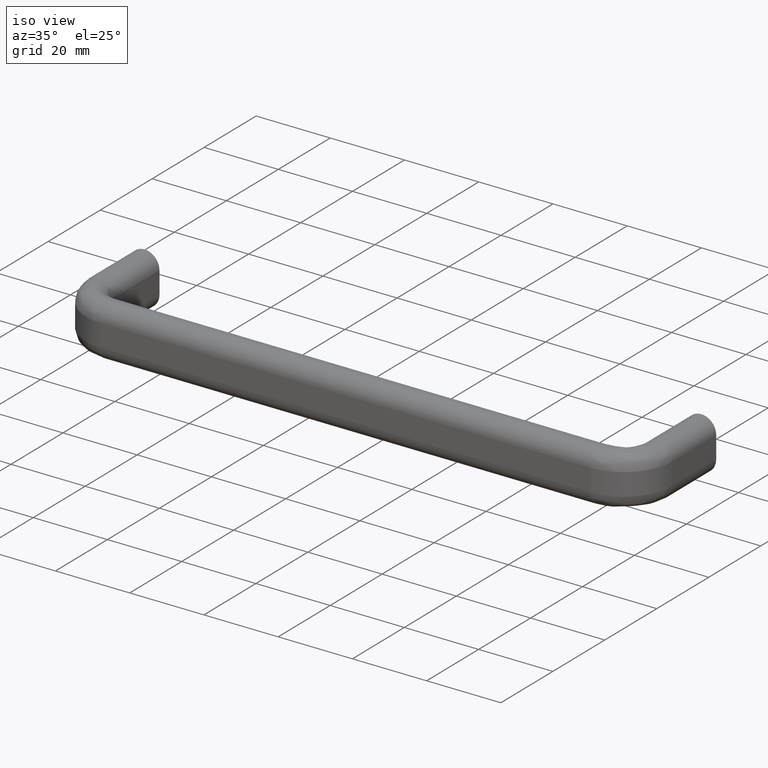
[diagram: clean part render]
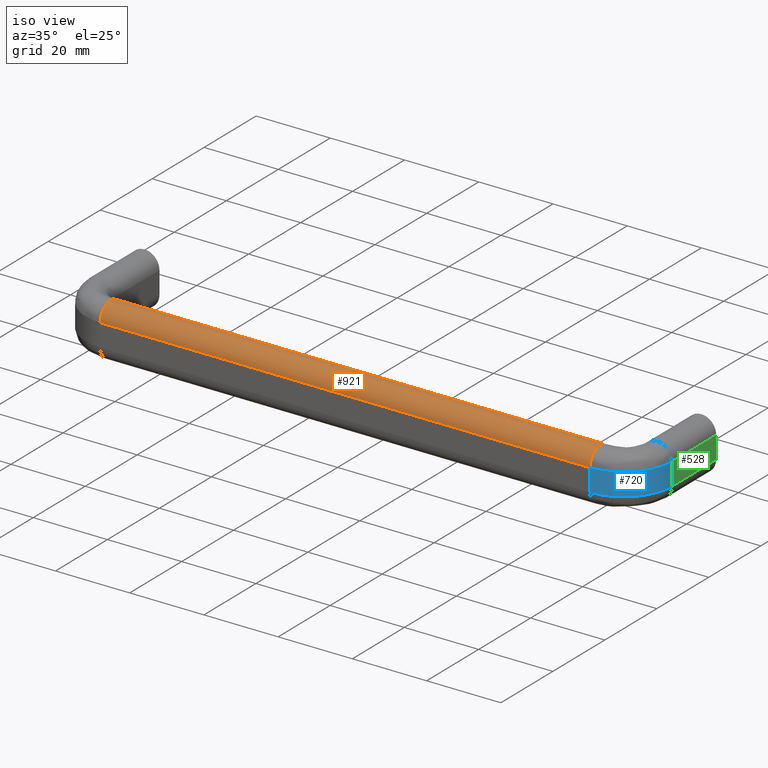
[diagram: same view with three faces highlighted in distinct colors, each labeled with its STEP entity id]
A machine part, iso view with three faces highlighted in distinct colors.
Their STEP definitions:

[orange] entity #921 — the highlighted face is a freeform B-spline surface patch.
#698=CARTESIAN_POINT('',(141.0,-30.0,3.0));
#699=VERTEX_POINT('',#698);
#746=CARTESIAN_POINT('',(141.0,-22.0,3.0));
#747=VERTEX_POINT('',#746);
#761=CARTESIAN_POINT('',(141.0,-22.0,3.0));
#762=CARTESIAN_POINT('',(141.0,-22.000000000000007,6.999999999999999));
#763=CARTESIAN_POINT('',(141.0,-26.0,7.0));
#764=CARTESIAN_POINT('',(141.0,-30.000000000000004,6.999999999999999));
#765=CARTESIAN_POINT('',(141.0,-30.0,3.0));
#773=(BOUNDED_CURVE()B_SPLINE_CURVE(2,(#761,#762,#763,#764,#765),.UNSPECIFIED.,.F.,.U.)B_SPLINE_CURVE_WITH_KNOTS((3,2,3),(0.0,0.500000000000000,1.0),.UNSPECIFIED.)CURVE()GEOMETRIC_REPRESENTATION_ITEM()RATIONAL_B_SPLINE_CURVE((1.0,0.707106781186548,1.0,0.707106781186548,1.0))REPRESENTATION_ITEM(''));
#774=EDGE_CURVE('',#747,#699,#773,.T.);
#862=CARTESIAN_POINT('',(9.0,-30.0,3.0));
#863=VERTEX_POINT('',#862);
#864=CARTESIAN_POINT('',(9.0,-30.0,3.0));
#865=CARTESIAN_POINT('',(141.0,-30.0,3.0));
#866=QUASI_UNIFORM_CURVE('',1,(#864,#865),.UNSPECIFIED.,.F.,.U.);
#867=EDGE_CURVE('',#863,#699,#866,.T.);
#877=CARTESIAN_POINT('',(5.699999999999996,-29.998629299902230,2.895292206768502));
#878=CARTESIAN_POINT('',(144.382499999999990,-29.998629299902230,2.895292206768502));
#879=CARTESIAN_POINT('',(5.699999999999998,-30.108968291371600,7.108968291371591));
#880=CARTESIAN_POINT('',(144.382500000000020,-30.108968291371600,7.108968291371591));
#881=CARTESIAN_POINT('',(5.699999999999996,-25.895292206768509,6.998629299902220));
#882=CARTESIAN_POINT('',(144.382499999999990,-25.895292206768509,6.998629299902220));
#883=CARTESIAN_POINT('',(5.699999999999998,-21.681616122165430,6.888290308432843));
#884=CARTESIAN_POINT('',(144.382500000000020,-21.681616122165430,6.888290308432843));
#885=CARTESIAN_POINT('',(5.699999999999996,-22.012330665067498,2.686163617088617));
#886=CARTESIAN_POINT('',(144.382499999999990,-22.012330665067498,2.686163617088617));
#894=(BOUNDED_SURFACE()B_SPLINE_SURFACE(1,2,((#877,#879,#881,#883,#885),(#878,#880,#882,#884,#886)),.UNSPECIFIED.,.F.,.F.,.U.)B_SPLINE_SURFACE_WITH_KNOTS((2,2),(3,2,3),(0.0,138.682500000000000),(0.0,6.874142495469371,13.748284990938741),.UNSPECIFIED.)GEOMETRIC_REPRESENTATION_ITEM()RATIONAL_B_SPLINE_SURFACE(((1.0,0.688354575693754,1.0,0.688354575693754,1.0),(1.0,0.688354575693754,1.0,0.688354575693754,1.0)))REPRESENTATION_ITEM('')SURFACE());
#895=ORIENTED_EDGE('',*,*,#867,.T.);
#896=ORIENTED_EDGE('',*,*,#774,.F.);
#897=CARTESIAN_POINT('',(9.0,-22.0,3.0));
#898=VERTEX_POINT('',#897);
#899=CARTESIAN_POINT('',(9.0,-22.0,3.0));
#900=CARTESIAN_POINT('',(141.0,-22.0,3.0));
#901=QUASI_UNIFORM_CURVE('',1,(#899,#900),.UNSPECIFIED.,.F.,.U.);
#902=EDGE_CURVE('',#898,#747,#901,.T.);
#903=ORIENTED_EDGE('',*,*,#902,.F.);
#904=CARTESIAN_POINT('',(9.0,-22.0,3.0));
#905=CARTESIAN_POINT('',(9.000000000000002,-22.000000000000007,6.999999999999999));
#906=CARTESIAN_POINT('',(9.0,-26.0,7.0));
#907=CARTESIAN_POINT('',(9.000000000000002,-30.000000000000004,6.999999999999999));
#908=CARTESIAN_POINT('',(9.0,-30.0,3.0));
#916=(BOUNDED_CURVE()B_SPLINE_CURVE(2,(#904,#905,#906,#907,#908),.UNSPECIFIED.,.F.,.U.)B_SPLINE_CURVE_WITH_KNOTS((3,2,3),(0.0,0.500000000000000,1.0),.UNSPECIFIED.)CURVE()GEOMETRIC_REPRESENTATION_ITEM()RATIONAL_B_SPLINE_CURVE((1.0,0.707106781186548,1.0,0.707106781186548,1.0))REPRESENTATION_ITEM(''));
#917=EDGE_CURVE('',#898,#863,#916,.T.);
#918=ORIENTED_EDGE('',*,*,#917,.T.);
#919=EDGE_LOOP('',(#895,#896,#903,#918));
#920=FACE_OUTER_BOUND('',#919,.T.);
#921=ADVANCED_FACE('',(#920),#894,.T.);

[blue] entity #720 — the highlighted face is a freeform B-spline surface patch.
#469=CARTESIAN_POINT('',(154.0,-17.0,-3.0));
#470=VERTEX_POINT('',#469);
#514=CARTESIAN_POINT('',(154.0,-17.0,3.0));
#515=VERTEX_POINT('',#514);
#521=CARTESIAN_POINT('',(154.0,-17.0,3.0));
#522=CARTESIAN_POINT('',(154.0,-17.0,-3.0));
#523=QUASI_UNIFORM_CURVE('',1,(#521,#522),.UNSPECIFIED.,.F.,.U.);
#524=EDGE_CURVE('',#515,#470,#523,.T.);
#634=CARTESIAN_POINT('',(141.0,-30.0,-3.0));
#635=VERTEX_POINT('',#634);
#636=CARTESIAN_POINT('',(141.0,-30.0,-3.0));
#637=CARTESIAN_POINT('',(154.0,-29.999999999999993,-3.000000000000000));
#638=CARTESIAN_POINT('',(154.0,-17.0,-3.0));
#646=(BOUNDED_CURVE()B_SPLINE_CURVE(2,(#636,#637,#638),.UNSPECIFIED.,.F.,.U.)CURVE()GEOMETRIC_REPRESENTATION_ITEM()QUASI_UNIFORM_CURVE()RATIONAL_B_SPLINE_CURVE((1.0,0.707106781186547,1.0))REPRESENTATION_ITEM(''));
#647=EDGE_CURVE('',#635,#470,#646,.T.);
#682=CARTESIAN_POINT('',(153.995545224682300,-16.659699671997640,-3.150000000000001));
#683=CARTESIAN_POINT('',(153.995545224682300,-16.659699671997640,3.153750000000001));
#684=CARTESIAN_POINT('',(154.370399382161390,-30.974802407211385,-3.150000000000001));
#685=CARTESIAN_POINT('',(154.370399382161390,-30.974802407211385,3.153750000000001));
#686=CARTESIAN_POINT('',(140.085839016862220,-29.967818231950538,-3.150000000000001));
#687=CARTESIAN_POINT('',(140.085839016862220,-29.967818231950538,3.153750000000001));
#695=(BOUNDED_SURFACE()B_SPLINE_SURFACE(1,2,((#682,#684,#686),(#683,#685,#687)),.UNSPECIFIED.,.F.,.F.,.U.)B_SPLINE_SURFACE_WITH_KNOTS((2,2),(3,3),(0.0,6.303750000000002),(0.0,23.024850473148700),.UNSPECIFIED.)GEOMETRIC_REPRESENTATION_ITEM()RATIONAL_B_SPLINE_SURFACE(((1.0,0.670944223154768,0.996392648609106),(1.0,0.670944223154768,0.996392648609106)))REPRESENTATION_ITEM('')SURFACE());
#696=ORIENTED_EDGE('',*,*,#647,.T.);
#697=ORIENTED_EDGE('',*,*,#524,.F.);
#698=CARTESIAN_POINT('',(141.0,-30.0,3.0));
#699=VERTEX_POINT('',#698);
#700=CARTESIAN_POINT('',(141.0,-30.0,3.0));
#701=CARTESIAN_POINT('',(154.0,-29.999999999999993,3.000000000000000));
#702=CARTESIAN_POINT('',(154.0,-17.0,3.0));
#710=(BOUNDED_CURVE()B_SPLINE_CURVE(2,(#700,#701,#702),.UNSPECIFIED.,.F.,.U.)CURVE()GEOMETRIC_REPRESENTATION_ITEM()QUASI_UNIFORM_CURVE()RATIONAL_B_SPLINE_CURVE((1.0,0.707106781186547,1.0))REPRESENTATION_ITEM(''));
#711=EDGE_CURVE('',#699,#515,#710,.T.);
#712=ORIENTED_EDGE('',*,*,#711,.F.);
#713=CARTESIAN_POINT('',(141.0,-30.0,3.0));
#714=CARTESIAN_POINT('',(141.0,-30.0,-3.0));
#715=QUASI_UNIFORM_CURVE('',1,(#713,#714),.UNSPECIFIED.,.F.,.U.);
#716=EDGE_CURVE('',#699,#635,#715,.T.);
#717=ORIENTED_EDGE('',*,*,#716,.T.);
#718=EDGE_LOOP('',(#696,#697,#712,#717));
#719=FACE_OUTER_BOUND('',#718,.T.);
#720=ADVANCED_FACE('',(#719),#695,.T.);

[green] entity #528 — the highlighted face is a freeform B-spline surface patch.
#450=CARTESIAN_POINT('',(154.0,0.0,-3.0));
#451=VERTEX_POINT('',#450);
#469=CARTESIAN_POINT('',(154.0,-17.0,-3.0));
#470=VERTEX_POINT('',#469);
#471=CARTESIAN_POINT('',(154.0,-17.0,-3.0));
#472=CARTESIAN_POINT('',(154.0,0.0,-3.0));
#473=QUASI_UNIFORM_CURVE('',1,(#471,#472),.UNSPECIFIED.,.F.,.U.);
#474=EDGE_CURVE('',#470,#451,#473,.T.);
#501=CARTESIAN_POINT('',(154.0,-17.849149967050710,3.299699988370836));
#502=CARTESIAN_POINT('',(154.0,-17.849149967050710,-3.299700149303376));
#503=CARTESIAN_POINT('',(154.0,0.849150423026235,3.299699988370836));
#504=CARTESIAN_POINT('',(154.0,0.849150423026235,-3.299700149303376));
#505=B_SPLINE_SURFACE_WITH_KNOTS('',1,1,((#501,#503),(#502,#504)),.UNSPECIFIED.,.F.,.F.,.U.,(2,2),(2,2),(0.0,6.599400137674213),(0.0,18.698300390076941),.UNSPECIFIED.);
#506=ORIENTED_EDGE('',*,*,#474,.T.);
#507=CARTESIAN_POINT('',(154.0,0.0,3.0));
#508=VERTEX_POINT('',#507);
#509=CARTESIAN_POINT('',(154.0,0.0,3.0));
#510=CARTESIAN_POINT('',(154.0,0.0,-3.0));
#511=QUASI_UNIFORM_CURVE('',1,(#509,#510),.UNSPECIFIED.,.F.,.U.);
#512=EDGE_CURVE('',#508,#451,#511,.T.);
#513=ORIENTED_EDGE('',*,*,#512,.F.);
#514=CARTESIAN_POINT('',(154.0,-17.0,3.0));
#515=VERTEX_POINT('',#514);
#516=CARTESIAN_POINT('',(154.0,-17.0,3.0));
#517=CARTESIAN_POINT('',(154.0,0.0,3.0));
#518=QUASI_UNIFORM_CURVE('',1,(#516,#517),.UNSPECIFIED.,.F.,.U.);
#519=EDGE_CURVE('',#515,#508,#518,.T.);
#520=ORIENTED_EDGE('',*,*,#519,.F.);
#521=CARTESIAN_POINT('',(154.0,-17.0,3.0));
#522=CARTESIAN_POINT('',(154.0,-17.0,-3.0));
#523=QUASI_UNIFORM_CURVE('',1,(#521,#522),.UNSPECIFIED.,.F.,.U.);
#524=EDGE_CURVE('',#515,#470,#523,.T.);
#525=ORIENTED_EDGE('',*,*,#524,.T.);
#526=EDGE_LOOP('',(#506,#513,#520,#525));
#527=FACE_OUTER_BOUND('',#526,.T.);
#528=ADVANCED_FACE('',(#527),#505,.T.);